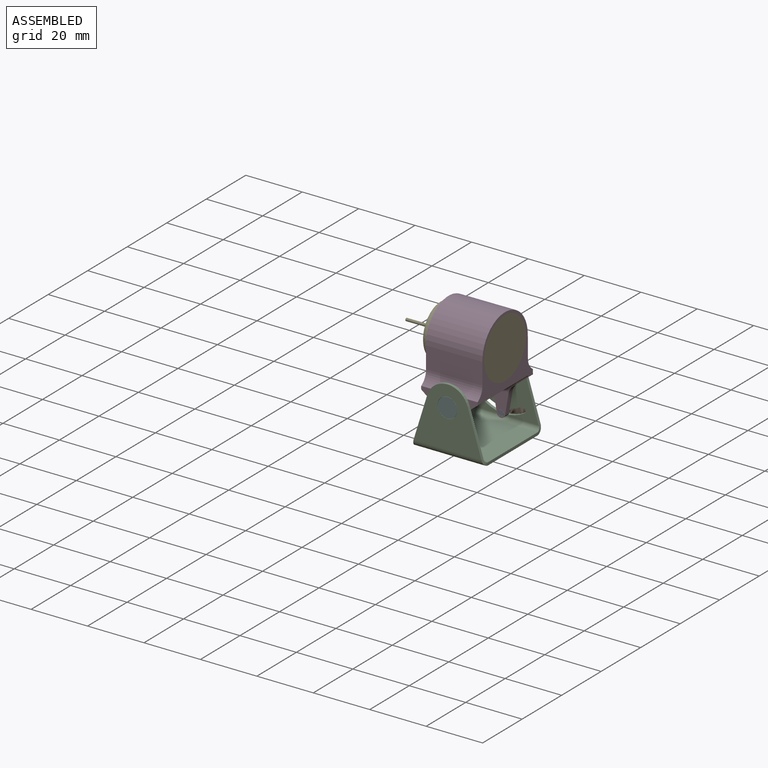
[diagram: assembled view]
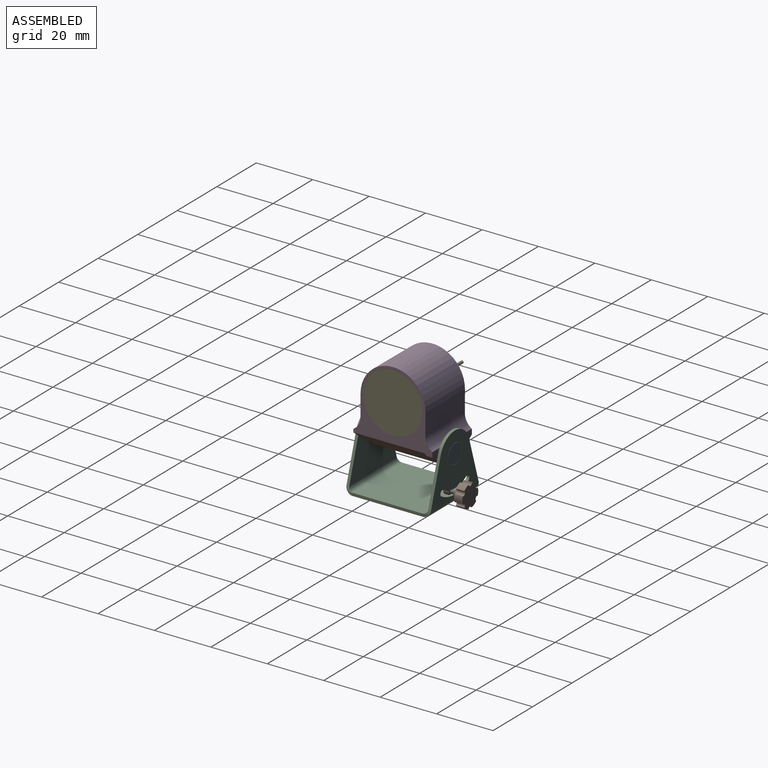
[diagram: assembled view, second angle]
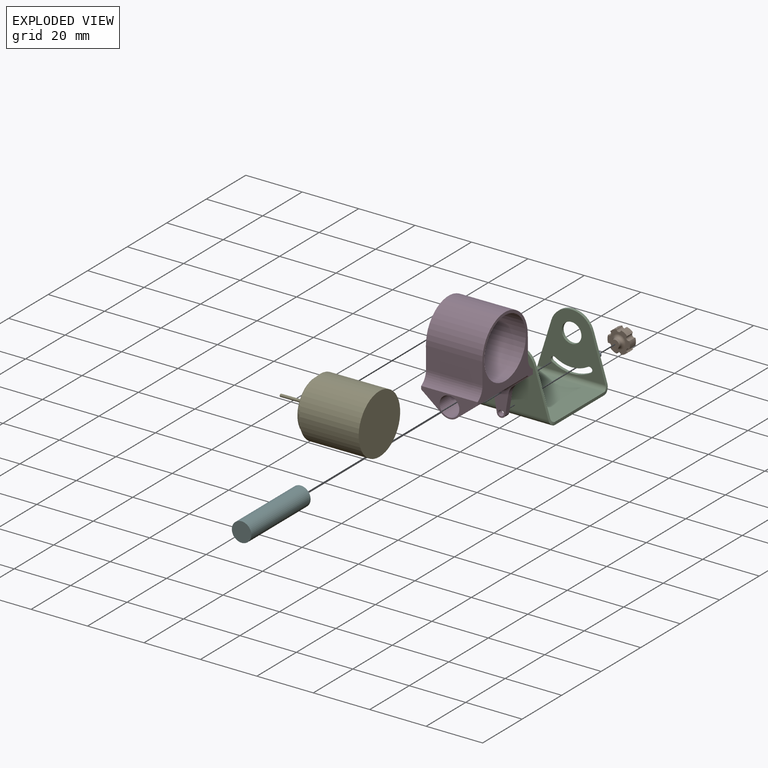
[diagram: exploded view]
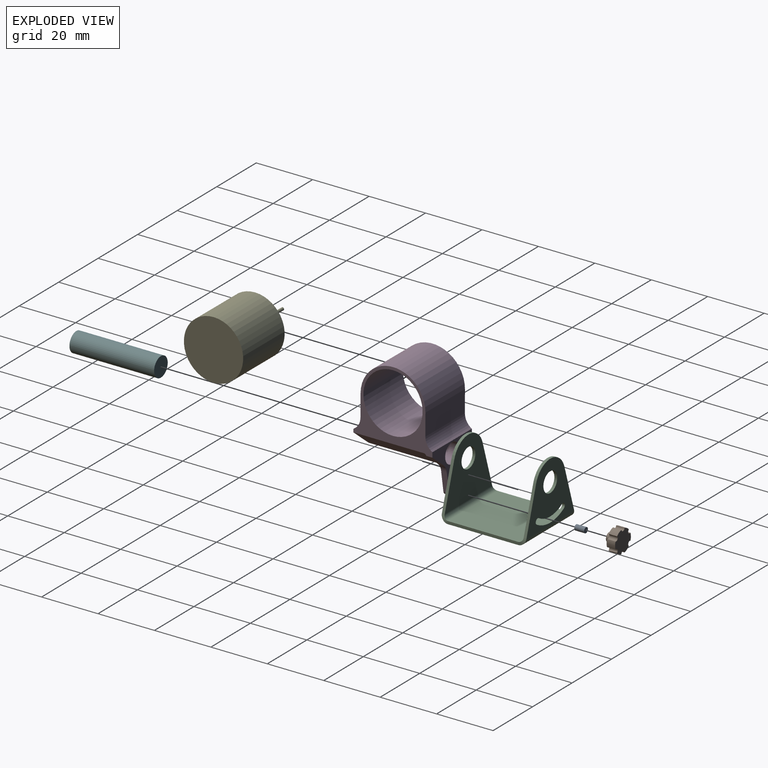
[diagram: exploded view, second angle]
ASSEMBLY  parts=6 mates=6
PART A: 3 faces, bbox 1.9x3.5x1.9 mm
  f0: cylinder r=0.95mm len=3.5mm, axis (0,-1,0), area 20.9mm2, adj f1,f2
  f1: plane 1.9x1.9mm, normal (0,1,0), area 2.8mm2, adj f0
  f2: plane 1.9x1.9mm, normal (0,-1,0), area 2.8mm2, adj f0
PART B: 17 faces, bbox 5x7.8x8 mm
  f0: plane 8x7.84mm, normal (1,0,0), area 24.9mm2, adj f1,f2,f3,f4,f5,f6,f10,f11
  f1: cylinder r=4mm len=3mm, axis (-1,0,0), area 7.8mm2, adj f0,f9,f15,f16
  f2: cylinder r=4mm len=3mm, axis (-1,0,0), area 7.8mm2, adj f0,f9,f14,f15
  f3: cylinder r=4mm len=3mm, axis (-1,0,0), area 7.8mm2, adj f0,f9,f13,f14
  f4: cylinder r=4mm len=3mm, axis (-1,0,0), area 7.8mm2, adj f0,f9,f12,f13
  f5: cylinder r=4mm len=3mm, axis (-1,0,0), area 7.8mm2, adj f0,f9,f11,f12
  f6: cylinder r=4mm len=3mm, axis (-1,0,0), area 7.8mm2, adj f0,f9,f11,f16
  f7: plane 3x3mm, normal (1,0,0), area 7.1mm2, adj f8
  f8: cylinder r=1.5mm len=3mm, axis (-1,0,0), area 9.4mm2, adj f7,f10
  f9: plane 8x7.84mm, normal (-1,0,0), area 44.5mm2, adj f1,f2,f3,f4,f5,f6,f11,f12
  f10: torus R=2.5mm, axis (-1,0,0), area 18.4mm2, adj f0,f8
  f11: cylinder r=0.8mm len=3mm, axis (-1,0,0), area 7.1mm2, adj f0,f5,f6,f9
  f12: cylinder r=0.8mm len=3mm, axis (-1,0,0), area 7.1mm2, adj f0,f4,f5,f9
  f13: cylinder r=0.8mm len=3mm, axis (-1,0,0), area 7.1mm2, adj f0,f3,f4,f9
  f14: cylinder r=0.8mm len=3mm, axis (-1,0,0), area 7.1mm2, adj f0,f2,f3,f9
  f15: cylinder r=0.8mm len=3mm, axis (-1,0,0), area 7.1mm2, adj f0,f1,f2,f9
  f16: cylinder r=0.8mm len=3mm, axis (-1,0,0), area 7.1mm2, adj f0,f1,f6,f9
PART C: 28 faces, bbox 25.3x30x23.5 mm
  f0: plane 25x1mm, normal (-1,0,0), area 25mm2, adj f2,f3,f15,f25
  f1: plane 25x1mm, normal (1,0,0), area 25mm2, adj f2,f3,f14,f24
  f2: plane 25.31x25mm, normal (0,0,-1), area 632.7mm2, adj f0,f1,f16,f26
  f3: plane 25.31x25mm, normal (0,0,1), area 632.7mm2, adj f0,f1,f17,f27
  f4: cylinder r=11mm len=11.66mm, axis (0,-1,0), area 12.3mm2, adj f5,f11,f12,f13
  f5: cylinder r=1mm len=1.85mm, axis (0,-1,0), area 3.1mm2, adj f4,f6,f12,f13
  f6: cylinder r=13mm len=13.78mm, axis (0,-1,0), area 14.5mm2, adj f5,f11,f12,f13
  f7: plane 15.72x4.87mm, normal (0.96,0,0.3), area 16.5mm2, adj f10,f12,f13,f14
  f8: plane 15.72x4.87mm, normal (-0.96,0,0.3), area 16.5mm2, adj f10,f12,f13,f15
  f9: cylinder r=3.5mm len=7mm, axis (0,-1,0), area 22mm2, adj f12,f13
  f10: cylinder r=7.5mm len=14.33mm, axis (0,-1,0), area 19.1mm2, adj f7,f8,f12,f13
  f11: cylinder r=1mm len=1.85mm, axis (0,-1,0), area 3.1mm2, adj f4,f6,f12,f13
  f12: plane 24.07x21mm, normal (0,1,0), area 288.9mm2, adj f4,f5,f6,f7,f8,f9,f10,f11
  f13: plane 24.07x21mm, normal (0,-1,0), area 288.9mm2, adj f4,f5,f6,f7,f8,f9,f10,f11
  f14: bspline ~2.5x2.5mm, area 3.2mm2, adj f1,f7,f16,f17
  f15: bspline ~2.5x2.5mm, area 3.2mm2, adj f0,f8,f16,f17
  f16: cylinder r=2.5mm len=25.31mm, axis (1,0,0), area 97mm2, adj f2,f12,f14,f15
  f17: cylinder r=1.5mm len=25.31mm, axis (1,0,0), area 58.2mm2, adj f3,f13,f14,f15
  f18: plane 15.72x4.87mm, normal (0.96,0,0.3), area 16.5mm2, adj f19,f22,f23,f24
  f19: cylinder r=7.5mm len=14.33mm, axis (0,-1,0), area 19.1mm2, adj f18,f20,f22,f23
  f20: plane 15.72x4.87mm, normal (-0.96,0,0.3), area 16.5mm2, adj f19,f22,f23,f25
  f21: cylinder r=3.5mm len=7mm, axis (0,-1,0), area 22mm2, adj f22,f23
  f22: plane 24.07x21mm, normal (0,-1,0), area 318.9mm2, adj f18,f19,f20,f21,f26
  f23: plane 24.07x21mm, normal (0,1,0), area 318.9mm2, adj f18,f19,f20,f21,f27
  f24: bspline ~2.5x2.5mm, area 3.2mm2, adj f1,f18,f26,f27
  f25: bspline ~2.5x2.5mm, area 3.2mm2, adj f0,f20,f26,f27
  f26: cylinder r=2.5mm len=25.31mm, axis (1,0,0), area 97mm2, adj f2,f22,f24,f25
  f27: cylinder r=1.5mm len=25.31mm, axis (1,0,0), area 58.2mm2, adj f3,f23,f24,f25
PART D: 26 faces, bbox 21.2x28x41 mm
  f0: plane 9.56x6.16mm, normal (0,-1,0), area 31.6mm2, adj f13,f16,f17,f18,f19,f20,f24
  f1: plane 20x8mm, normal (0,-1,0), area 61.8mm2, adj f2,f8,f9,f10,f11,f12,f21
  f2: plane 28x25.24mm, normal (1,0,0), area 176.1mm2, adj f1,f3,f4,f5,f6,f7,f9,f15
  f3: plane 20x7.67mm, normal (0,1,0), area 153.4mm2, adj f2,f4,f8,f22
  f4: cylinder r=11.5mm len=23mm, axis (-1,0,0), area 722.6mm2, adj f2,f3,f5,f8
  f5: plane 20x7.67mm, normal (0,-1,0), area 153.4mm2, adj f2,f4,f8,f21
  f6: plane 20x17.5mm, normal (0,1,0), area 109.6mm2, adj f2,f8,f12,f13,f14,f15,f16,f17
  f7: cylinder r=10.5mm len=21mm, axis (-1,0,0), area 1319.5mm2, adj f2,f8
  f8: plane 28x25.24mm, normal (-1,0,0), area 176.1mm2, adj f1,f3,f4,f5,f6,f7,f11,f14
  f9: plane 25x7.5mm, normal (0.63,0,-0.78), area 240.3mm2, adj f1,f2,f10,f25
  f10: cylinder r=4mm len=25mm, axis (0,-1,0), area 135.3mm2, adj f1,f9,f11,f24
  f11: plane 25x7.5mm, normal (-0.63,0,-0.78), area 240.3mm2, adj f1,f8,f10,f23
  f12: cylinder r=3.5mm len=28mm, axis (0,-1,0), area 615.8mm2, adj f1,f6
  f13: cylinder r=5mm len=3.06mm, axis (0,-1,0), area 7.4mm2, adj f0,f6,f14,f17,f23,f24
  f14: plane 5.54x4.44mm, normal (-0.63,0,-0.78), area 15.1mm2, adj f6,f8,f13,f23
  f15: plane 5.54x4.44mm, normal (0.63,0,-0.78), area 15.1mm2, adj f2,f6,f16,f25
  f16: cylinder r=5mm len=3.06mm, axis (0,-1,0), area 7.4mm2, adj f0,f6,f15,f19,f24,f25
  f17: plane 7x2mm, normal (-0.99,0,-0.17), area 14.2mm2, adj f0,f6,f13,f18
  f18: cylinder r=1.5mm len=2.96mm, axis (0,-1,0), area 8.4mm2, adj f0,f6,f17,f19
  f19: plane 7x2mm, normal (0.99,0,-0.17), area 14.2mm2, adj f0,f6,f16,f18
  f20: cylinder r=1mm len=2mm, axis (0,-1,0), area 12.6mm2, adj f0,f6
  f21: cylinder r=5mm len=20mm, axis (1,0,0), area 104.7mm2, adj f1,f2,f5,f8
  f22: cylinder r=5mm len=20mm, axis (-1,0,0), area 104.7mm2, adj f2,f3,f6,f8
  f23: cylinder r=1mm len=8.1mm, axis (-0.78,0,0.63), area 10.3mm2, adj f8,f11,f13,f14,f24
  f24: torus R=5mm, axis (0,-1,0), area 9.3mm2, adj f0,f10,f13,f16,f23,f25
  f25: cylinder r=1mm len=8.1mm, axis (-0.78,0,-0.63), area 10.3mm2, adj f2,f9,f15,f16,f24
PART E: 12 faces, bbox 35x21x21 mm
  f0: cylinder r=10.5mm len=21mm, axis (-1,0,0), area 1385.4mm2, adj f1,f6
  f1: plane 21x21mm, normal (-1,0,0), area 62.8mm2, adj f0,f7
  f2: cylinder r=9mm len=18mm, axis (-1,0,0), area 56.5mm2, adj f7,f8
  f3: plane 17x17mm, normal (-1,0,0), area 207.3mm2, adj f8,f9
  f4: cylinder r=2mm len=4mm, axis (-1,0,0), area 18.8mm2, adj f5,f9
  f5: plane 4x4mm, normal (-1,0,0), area 11.8mm2, adj f4,f10
  f6: plane 21x21mm, normal (1,0,0), area 346.4mm2, adj f0
  f7: torus R=9.5mm, axis (1,0,0), area 45.3mm2, adj f1,f2
  f8: torus R=8.5mm, axis (1,0,0), area 43.5mm2, adj f2,f3
  f9: torus R=2.5mm, axis (1,0,0), area 10.8mm2, adj f3,f4
  f10: cylinder r=0.5mm len=10mm, axis (1,0,0), area 31.4mm2, adj f5,f11
  f11: plane 1x1mm, normal (-1,0,0), area 0.8mm2, adj f10
PART F: 3 faces, bbox 6.9x30x6.9 mm
  f0: cylinder r=3.45mm len=30mm, axis (0,1,0), area 650.3mm2, adj f1,f2
  f1: plane 6.9x6.9mm, normal (0,-1,0), area 37.4mm2, adj f0
  f2: plane 6.9x6.9mm, normal (0,1,0), area 37.4mm2, adj f0
PLACE A rot(axis=(0,-1,0),0.3deg) t=(-44.38,-0.16,-109.35)mm
PLACE B rot(axis=(-0.58,0.58,-0.58),119.8deg) t=(-26.64,-29.21,-44.37)mm
PLACE C t=(-52.88,1.84,13.83)mm fixed
PLACE D rot(axis=(0,-1,0),0.3deg) t=(10.5,-167.03,-25.7)mm
PLACE E rot(axis=(0,-1,0),0.3deg) t=(100.76,-12.16,-34.5)mm
PLACE F t=(10.53,2.84,-25.65)mm
MATE fastened A.f0 <-> B.f1  axis (0,1,0) through (20.6,3.34,-44.13)mm
MATE planar C.f4 <-> D.f10  axis (0,1,0) through (20.53,-26.16,-32.13)mm
MATE fastened E.f0 <-> D.f4  axis (1,0,0.01) through (30.45,-12.16,-16.08)mm
MATE fastened F.f0 <-> C.f4  axis (0,1,0) through (20.53,2.84,-32.13)mm
MATE fastened A.f0 <-> D.f18  axis (0,-1,0) through (20.6,-0.16,-44.13)mm
MATE revolute F.f0 <-> D.f10  axis (0,1,0) through (20.53,-12.16,-32.13)mm
